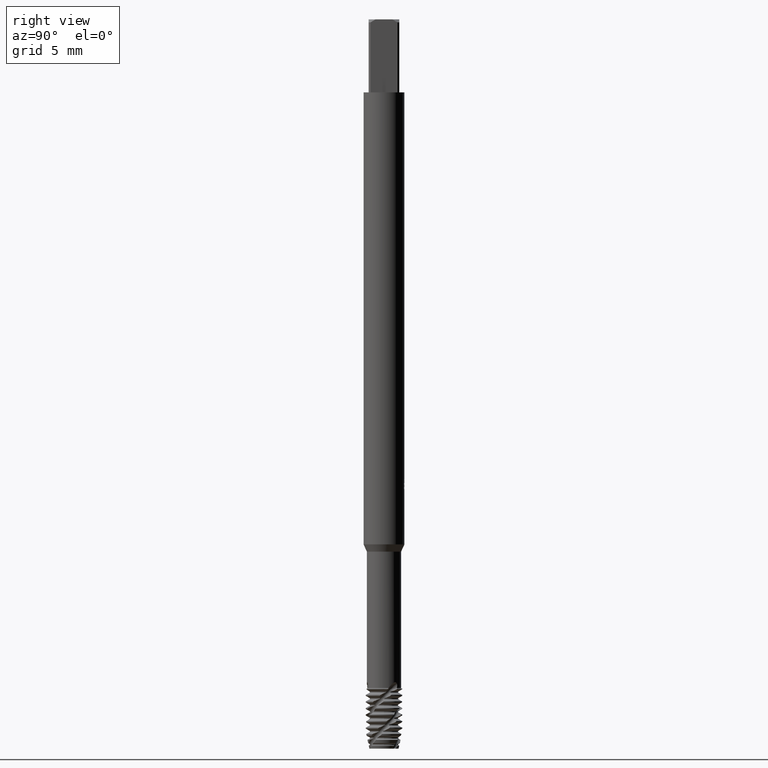
[diagram: clean part render]
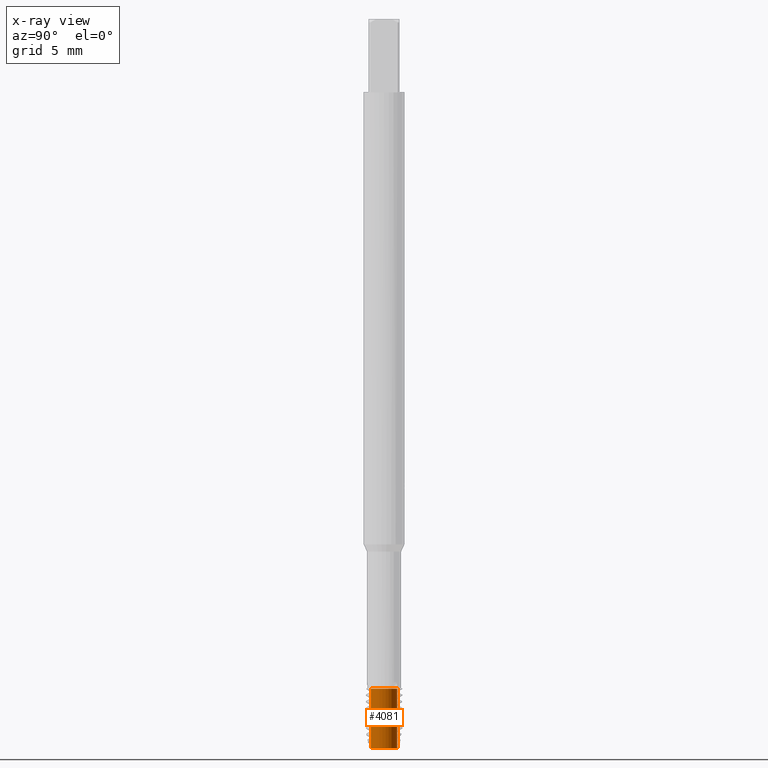
[diagram: x-ray — body ghosted, one internal face saturated and labeled with its STEP entity id]
A machine part, right view, then the same camera in x-ray: the body is ghosted and one INTERNAL B-rep face — a face not visible from any outside direction — is saturated and labeled: STEP entity #4081.
In plain terms, the highlighted cylindrical surface (edge-blend (fillet) strip) has radius 0.9058 mm, axis along (-0, -0, 1).
Its self-contained STEP definition (entity closure, byte-faithful):
#1543=VERTEX_POINT('',#4404);
#1967=EDGE_CURVE('',#1543,#2921,#4863,.T.);
#2097=VERTEX_POINT('',#5005);
#2211=EDGE_CURVE('',#2921,#2325,#5127,.T.);
#2229=EDGE_CURVE('',#1543,#2097,#5147,.T.);
#2325=VERTEX_POINT('',#5256);
#2921=VERTEX_POINT('',#5904);
#3815=EDGE_CURVE('',#2325,#2097,#6867,.T.);
#4081=ADVANCED_FACE('',(#7158),#7159,.T.);
#4404=CARTESIAN_POINT('',(0.0,0.90578732,-45.9));
#4863=LINE('',#9417,#9418);
#5005=CARTESIAN_POINT('',(1.10923290728374E-016,-0.90578732,-45.9));
#5127=CIRCLE('',#10483,0.90578732);
#5147=CIRCLE('',#10508,0.90578732);
#5256=CARTESIAN_POINT('',(1.10923290728374E-016,-0.90578732,-49.9580538123442));
#5904=CARTESIAN_POINT('',(0.0,0.90578732,-49.9580538123442));
#6867=LINE('',#16187,#16188);
#7158=FACE_OUTER_BOUND('',#17225,.T.);
#7159=CYLINDRICAL_SURFACE('',#17226,0.90578732);
#9417=CARTESIAN_POINT('',(-1.10923290728374E-016,0.90578732,-47.9290269061721));
#9418=VECTOR('',#18672,1.0);
#10483=AXIS2_PLACEMENT_3D('',#18925,#18926,#18927);
#10508=AXIS2_PLACEMENT_3D('',#18951,#18952,#18953);
#16187=CARTESIAN_POINT('',(1.10923290728374E-016,-0.90578732,-47.9290269061721));
#16188=VECTOR('',#20679,1.0);
#17225=EDGE_LOOP('',(#20968,#20969,#20970,#20971));
#17226=AXIS2_PLACEMENT_3D('',#20972,#20973,#20974);
#18672=DIRECTION('',(0.0,0.0,-1.0));
#18925=CARTESIAN_POINT('',(0.0,0.0,-49.9580538123442));
#18926=DIRECTION('',(0.0,0.0,-1.0));
#18927=DIRECTION('',(0.0,1.0,0.0));
#18951=CARTESIAN_POINT('',(0.0,0.0,-45.9));
#18952=DIRECTION('',(0.0,0.0,-1.0));
#18953=DIRECTION('',(0.0,1.0,0.0));
#20679=DIRECTION('',(-0.0,-0.0,1.0));
#20968=ORIENTED_EDGE('',*,*,#1967,.F.);
#20969=ORIENTED_EDGE('',*,*,#2229,.T.);
#20970=ORIENTED_EDGE('',*,*,#3815,.F.);
#20971=ORIENTED_EDGE('',*,*,#2211,.F.);
#20972=CARTESIAN_POINT('',(0.0,0.0,-47.9290269061721));
#20973=DIRECTION('',(-0.0,-0.0,1.0));
#20974=DIRECTION('',(0.0,1.0,0.0));